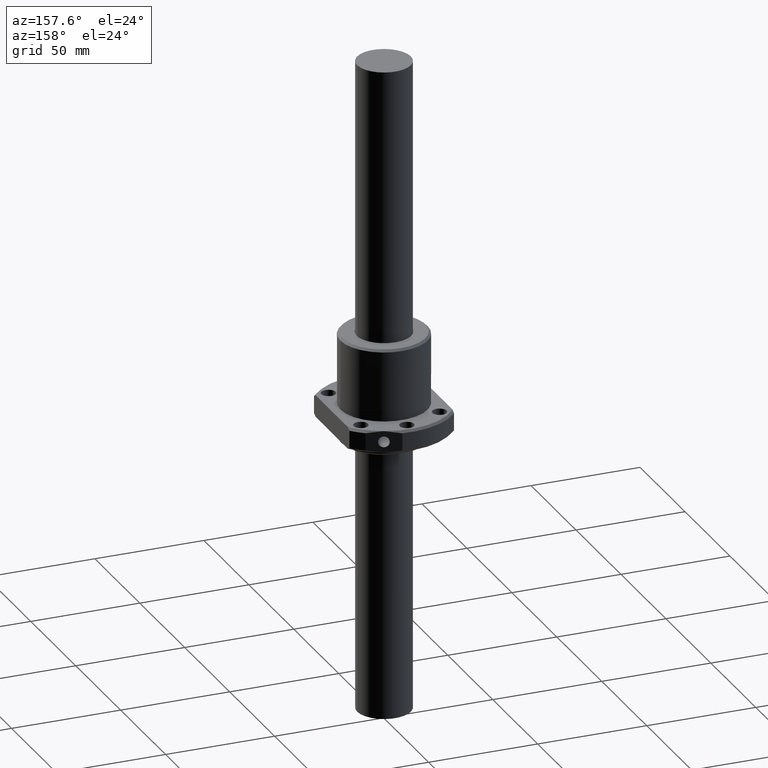
[diagram: clean part render]
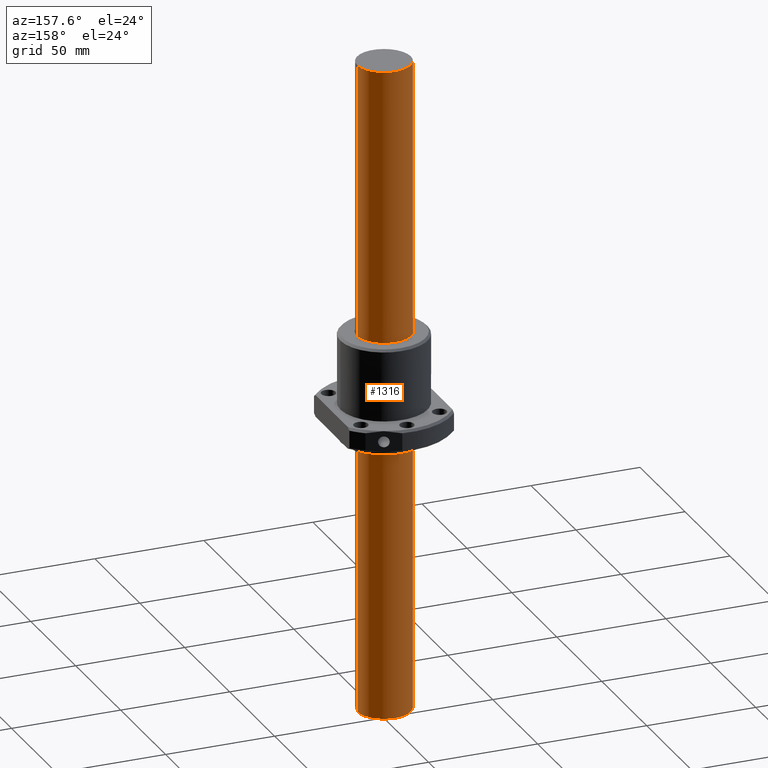
[diagram: same view with one face highlighted and labeled with its STEP entity id]
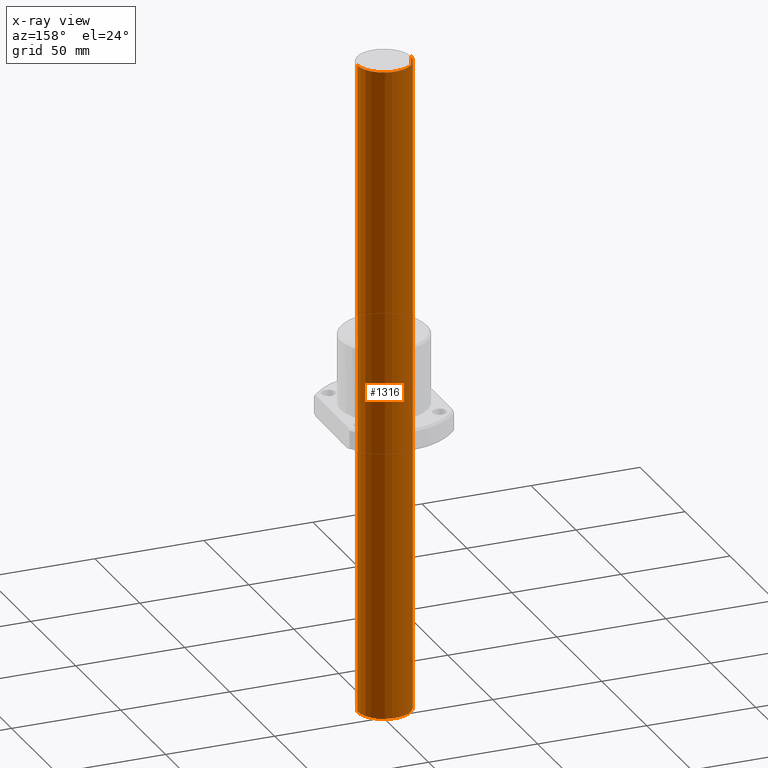
[diagram: x-ray of the same camera — body ghosted, the highlighted face saturated]
A machine part, auxiliary view. The second image highlights one B-rep face of the part: STEP entity #1316.
The next image is the same camera in x-ray: the body ghosted, the highlighted face saturated — about 0% of this face is hidden behind the body in this view.
In plain terms, the highlighted cylindrical surface (edge-blend (fillet) strip) has radius 12.3 mm, axis along (0, 0, 1).
Its self-contained STEP definition (entity closure, byte-faithful):
#72 = AXIS2_PLACEMENT_3D ( 'NONE', #361, #358, #357 ) ;
#88 = VERTEX_POINT ( 'NONE', #730 ) ;
#110 = EDGE_LOOP ( 'NONE', ( #680, #791, #360, #857 ) ) ;
#131 = VECTOR ( 'NONE', #391, 1000.000000000000000 ) ;
#206 = VERTEX_POINT ( 'NONE', #611 ) ;
#224 = AXIS2_PLACEMENT_3D ( 'NONE', #381, #379, #376 ) ;
#275 = CARTESIAN_POINT ( 'NONE',  ( -12.30000000000000100, 1.506315562951244400E-015, -300.0000000000000000 ) ) ;
#297 = DIRECTION ( 'NONE',  ( 1.000000000000000000, 0.0000000000000000000, 0.0000000000000000000 ) ) ;
#298 = DIRECTION ( 'NONE',  ( 0.0000000000000000000, 0.0000000000000000000, 1.000000000000000000 ) ) ;
#306 = CARTESIAN_POINT ( 'NONE',  ( 0.0000000000000000000, 0.0000000000000000000, -300.0000000000000000 ) ) ;
#338 = DIRECTION ( 'NONE',  ( 0.0000000000000000000, 0.0000000000000000000, 1.000000000000000000 ) ) ;
#342 = CARTESIAN_POINT ( 'NONE',  ( 12.30000000000000100, 0.0000000000000000000, -300.0000000000000000 ) ) ;
#344 = LINE ( 'NONE', #342, #1552 ) ;
#357 = DIRECTION ( 'NONE',  ( 1.000000000000000000, 0.0000000000000000000, 0.0000000000000000000 ) ) ;
#358 = DIRECTION ( 'NONE',  ( 0.0000000000000000000, 0.0000000000000000000, 1.000000000000000000 ) ) ;
#360 = ORIENTED_EDGE ( 'NONE', *, *, #1201, .F. ) ;
#361 = CARTESIAN_POINT ( 'NONE',  ( 0.0000000000000000000, 0.0000000000000000000, 0.0000000000000000000 ) ) ;
#376 = DIRECTION ( 'NONE',  ( 1.000000000000000000, 0.0000000000000000000, 0.0000000000000000000 ) ) ;
#379 = DIRECTION ( 'NONE',  ( -0.0000000000000000000, -0.0000000000000000000, -1.000000000000000000 ) ) ;
#381 = CARTESIAN_POINT ( 'NONE',  ( 0.0000000000000000000, 0.0000000000000000000, -300.0000000000000000 ) ) ;
#391 = DIRECTION ( 'NONE',  ( 0.0000000000000000000, 0.0000000000000000000, 1.000000000000000000 ) ) ;
#393 = CARTESIAN_POINT ( 'NONE',  ( -12.30000000000000100, 1.506315562951244400E-015, -300.0000000000000000 ) ) ;
#394 = LINE ( 'NONE', #393, #131 ) ;
#611 = CARTESIAN_POINT ( 'NONE',  ( 12.30000000000000100, 0.0000000000000000000, -300.0000000000000000 ) ) ;
#680 = ORIENTED_EDGE ( 'NONE', *, *, #1188, .F. ) ;
#730 = CARTESIAN_POINT ( 'NONE',  ( -12.30000000000000100, 1.506315562951244400E-015, 0.0000000000000000000 ) ) ;
#750 = CARTESIAN_POINT ( 'NONE',  ( 12.30000000000000100, 0.0000000000000000000, 0.0000000000000000000 ) ) ;
#791 = ORIENTED_EDGE ( 'NONE', *, *, #1175, .T. ) ;
#857 = ORIENTED_EDGE ( 'NONE', *, *, #1215, .F. ) ;
#887 = VERTEX_POINT ( 'NONE', #750 ) ;
#1100 = CYLINDRICAL_SURFACE ( 'NONE', #1376, 12.30000000000000100 ) ;
#1175 = EDGE_CURVE ( 'NONE', #1330, #88, #394, .T. ) ;
#1188 = EDGE_CURVE ( 'NONE', #1330, #206, #1718, .T. ) ;
#1201 = EDGE_CURVE ( 'NONE', #887, #88, #1558, .T. ) ;
#1215 = EDGE_CURVE ( 'NONE', #206, #887, #344, .T. ) ;
#1316 = ADVANCED_FACE ( 'NONE', ( #1621 ), #1100, .T. ) ;
#1330 = VERTEX_POINT ( 'NONE', #275 ) ;
#1376 = AXIS2_PLACEMENT_3D ( 'NONE', #306, #298, #297 ) ;
#1552 = VECTOR ( 'NONE', #338, 1000.000000000000000 ) ;
#1558 = CIRCLE ( 'NONE', #72, 12.30000000000000100 ) ;
#1621 = FACE_OUTER_BOUND ( 'NONE', #110, .T. ) ;
#1718 = CIRCLE ( 'NONE', #224, 12.30000000000000100 ) ;